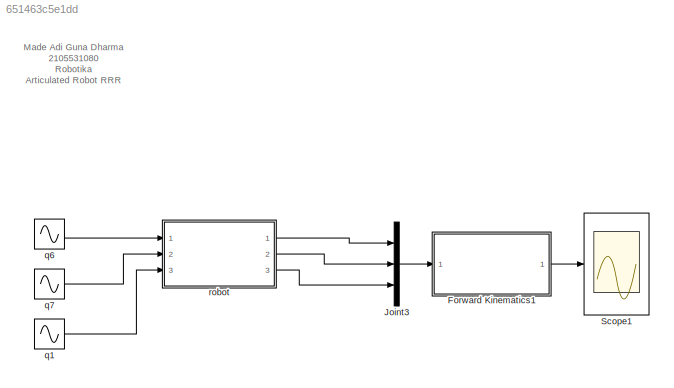
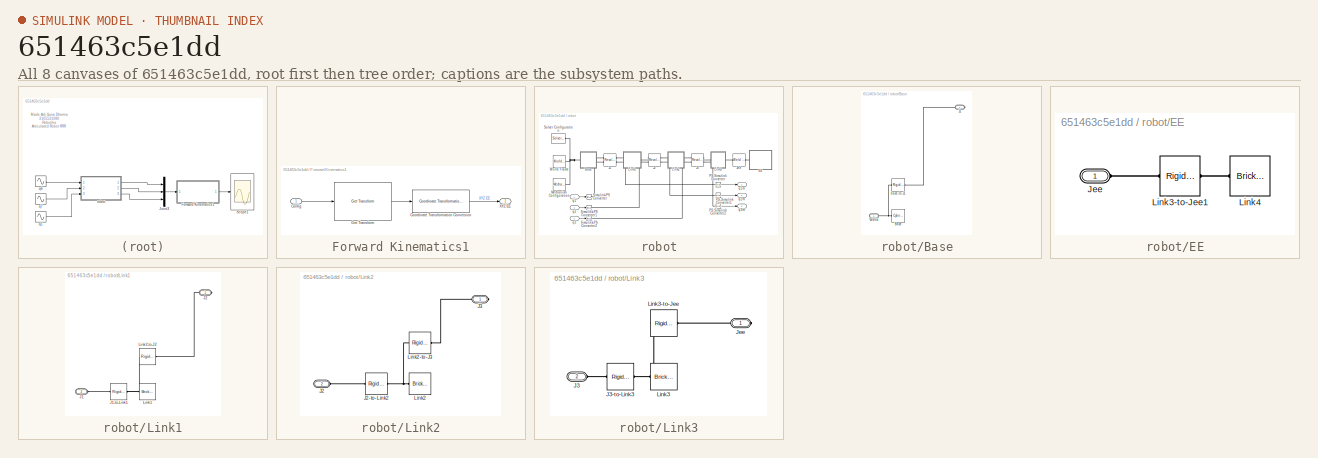
[diagram: thumbnail index - all 8 canvases of the model, root first then tree order]
MODEL slx_651463c5e1dd
KIND model
CONFIG AbsTol = auto
CONFIG EnableMultiTasking = off
CONFIG FixedStep = auto
CONFIG MaxStep = auto
CONFIG MinStep = auto
CONFIG RelTol = 1e-3
CONFIG SampleTimeConstraint = Unconstrained
CONFIG Solver = VariableStepAuto
CONFIG SolverName = VariableStepAuto
CONFIG StartTime = 0.0
CONFIG StopTime = 10.0
BLOCK [SubSystem] Forward Kinematics1
  Ports = [1, 1]
  RequestExecContextInheritance = off
BLOCK [Inport] Forward Kinematics1/Config
BLOCK [Reference] Forward Kinematics1/Coordinate Transformation Conversion  REF=robotcorelib/Coordinate Transformation Conversion
  Ports = [1, 1]
  SourceBlock = robotcorelib/Coordinate Transformation Conversion
  SourceProductBaseCode = NV,RO,RR
  SourceType = robotics.slcore.internal.block.CoordinateTransformationConversion
BLOCK [Reference] Forward Kinematics1/Get Transform  REF=robotmaniplib/Get Transform
  Ports = [1, 1]
  SourceBlock = robotmaniplib/Get Transform
  SourceProductBaseCode = RO
  SourceType = Get Transform
BLOCK [Outport] Forward Kinematics1/XYZ EE
BLOCK [Mux] Joint3
  DisplayOption = bar
  Inputs = 3
  Ports = [3, 1]
BLOCK [Scope] Scope1
  Floating = off
  NumInputPorts = 3
  Ports = [3]
  ScopeSpecificationString = Simulink.scopes.TimeScopeBlockCfg('CurrentConfiguration', extmgr.ConfigurationSet(extmgr.Configuration('Core','General UI',true),extmgr.Configuration('Core','Source UI',true),extmgr.Configuration('Sources','WiredSimulink',true,'DataLoggingVariableName','ScopeData1'),extmgr.Configuration('Visuals','Time Domain',true,'SerializedDisplays',{struct('MinYLimReal','-1.00000','MaxYLimReal','1.00000','YLab...<+2741ch>
BLOCK [Sin] q1
  Amplitude = 0.6
  Frequency = 0.7
  Ports = [0, 1]
  SampleTime = 0
BLOCK [Sin] q6
  Amplitude = 1.3
  Ports = [0, 1]
  SampleTime = 0
BLOCK [Sin] q7
  Amplitude = 0.6
  Frequency = 0.7
  Ports = [0, 1]
  SampleTime = 0
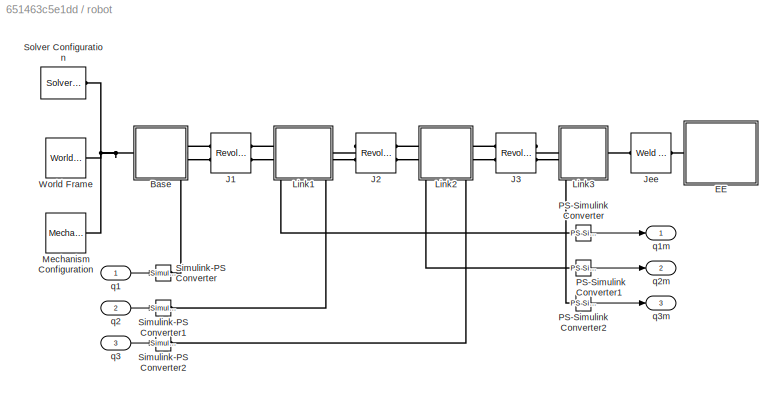
BLOCK [SubSystem] robot
  Ports = [3, 3]
  RequestExecContextInheritance = off
BLOCK [SubSystem] robot/Base
  Ports = [0, 0, 0, 0, 0, 1, 1]
  RequestExecContextInheritance = off
BLOCK [Reference] robot/Base/Base  REF=sm_lib/Body Elements/Cylindrical Solid
  Ports = [0, 0, 0, 0, 0, 0, 1]
  SourceBlock = sm_lib/Body Elements/Cylindrical Solid
  SourceProductBaseCode = MS
  SourceType = Cylindrical Solid
BLOCK [PMIOPort] robot/Base/J1
  Side = Right
BLOCK [PMIOPort] robot/Base/World
  Port = 2
  Side = Left
BLOCK [Reference] robot/Base/base-to-J1  REF=sm_lib/Frames and
Transforms/Rigid
Transform
  Ports = [0, 0, 0, 0, 0, 1, 1]
  SourceBlock = sm_lib/Frames and\nTransforms/Rigid\nTransform
  SourceProductBaseCode = MS
  SourceType = Rigid\nTransform
BLOCK [SubSystem] robot/EE
  Ports = [0, 0, 0, 0, 0, 1]
  RequestExecContextInheritance = off
BLOCK [PMIOPort] robot/EE/Jee
  Side = Left
BLOCK [Reference] robot/EE/Link3-to-Jee1  REF=sm_lib/Frames and
Transforms/Rigid
Transform
  Ports = [0, 0, 0, 0, 0, 1, 1]
  SourceBlock = sm_lib/Frames and\nTransforms/Rigid\nTransform
  SourceProductBaseCode = MS
  SourceType = Rigid\nTransform
BLOCK [Reference] robot/EE/Link4  REF=sm_lib/Body Elements/Brick Solid
  Ports = [0, 0, 0, 0, 0, 0, 1]
  SourceBlock = sm_lib/Body Elements/Brick Solid
  SourceProductBaseCode = MS
  SourceType = Brick Solid
BLOCK [Reference] robot/J1  REF=sm_lib/Joints/Revolute Joint
  Ports = [0, 0, 0, 0, 0, 2, 2]
  SourceBlock = sm_lib/Joints/Revolute Joint
  SourceProductBaseCode = MS
  SourceType = Revolute Joint
BLOCK [Reference] robot/J2  REF=sm_lib/Joints/Revolute Joint
  Ports = [0, 0, 0, 0, 0, 2, 2]
  SourceBlock = sm_lib/Joints/Revolute Joint
  SourceProductBaseCode = MS
  SourceType = Revolute Joint
BLOCK [Reference] robot/J3  REF=sm_lib/Joints/Revolute Joint
  Ports = [0, 0, 0, 0, 0, 2, 2]
  SourceBlock = sm_lib/Joints/Revolute Joint
  SourceProductBaseCode = MS
  SourceType = Revolute Joint
BLOCK [Reference] robot/Jee  REF=sm_lib/Joints/Weld Joint
  Ports = [0, 0, 0, 0, 0, 1, 1]
  SourceBlock = sm_lib/Joints/Weld Joint
  SourceProductBaseCode = MS
  SourceType = Weld Joint
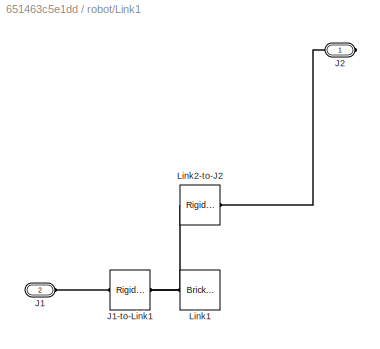
BLOCK [SubSystem] robot/Link1
  Ports = [0, 0, 0, 0, 0, 1, 1]
  RequestExecContextInheritance = off
BLOCK [PMIOPort] robot/Link1/J1
  Port = 2
  Side = Left
BLOCK [Reference] robot/Link1/J1-to-Link1  REF=sm_lib/Frames and
Transforms/Rigid
Transform
  Ports = [0, 0, 0, 0, 0, 1, 1]
  SourceBlock = sm_lib/Frames and\nTransforms/Rigid\nTransform
  SourceProductBaseCode = MS
  SourceType = Rigid\nTransform
BLOCK [PMIOPort] robot/Link1/J2
  Side = Right
BLOCK [Reference] robot/Link1/Link1  REF=sm_lib/Body Elements/Brick Solid
  Ports = [0, 0, 0, 0, 0, 0, 1]
  SourceBlock = sm_lib/Body Elements/Brick Solid
  SourceProductBaseCode = MS
  SourceType = Brick Solid
BLOCK [Reference] robot/Link1/Link2-to-J2  REF=sm_lib/Frames and
Transforms/Rigid
Transform
  Ports = [0, 0, 0, 0, 0, 1, 1]
  SourceBlock = sm_lib/Frames and\nTransforms/Rigid\nTransform
  SourceProductBaseCode = MS
  SourceType = Rigid\nTransform
BLOCK [SubSystem] robot/Link2
  Ports = [0, 0, 0, 0, 0, 1, 1]
  RequestExecContextInheritance = off
BLOCK [PMIOPort] robot/Link2/J2
  Port = 2
  Side = Left
BLOCK [Reference] robot/Link2/J2-to-Link2  REF=sm_lib/Frames and
Transforms/Rigid
Transform
  Ports = [0, 0, 0, 0, 0, 1, 1]
  SourceBlock = sm_lib/Frames and\nTransforms/Rigid\nTransform
  SourceProductBaseCode = MS
  SourceType = Rigid\nTransform
BLOCK [PMIOPort] robot/Link2/J3
  Side = Right
BLOCK [Reference] robot/Link2/Link2  REF=sm_lib/Body Elements/Brick Solid
  Ports = [0, 0, 0, 0, 0, 0, 1]
  SourceBlock = sm_lib/Body Elements/Brick Solid
  SourceProductBaseCode = MS
  SourceType = Brick Solid
BLOCK [Reference] robot/Link2/Link2-to-J3  REF=sm_lib/Frames and
Transforms/Rigid
Transform
  Ports = [0, 0, 0, 0, 0, 1, 1]
  SourceBlock = sm_lib/Frames and\nTransforms/Rigid\nTransform
  SourceProductBaseCode = MS
  SourceType = Rigid\nTransform
BLOCK [SubSystem] robot/Link3
  Ports = [0, 0, 0, 0, 0, 1, 1]
  RequestExecContextInheritance = off
BLOCK [PMIOPort] robot/Link3/J3
  Port = 2
  Side = Left
BLOCK [Reference] robot/Link3/J3-to-Link3  REF=sm_lib/Frames and
Transforms/Rigid
Transform
  Ports = [0, 0, 0, 0, 0, 1, 1]
  SourceBlock = sm_lib/Frames and\nTransforms/Rigid\nTransform
  SourceProductBaseCode = MS
  SourceType = Rigid\nTransform
BLOCK [PMIOPort] robot/Link3/Jee
  Side = Right
BLOCK [Reference] robot/Link3/Link3  REF=sm_lib/Body Elements/Brick Solid
  Ports = [0, 0, 0, 0, 0, 0, 1]
  SourceBlock = sm_lib/Body Elements/Brick Solid
  SourceProductBaseCode = MS
  SourceType = Brick Solid
BLOCK [Reference] robot/Link3/Link3-to-Jee  REF=sm_lib/Frames and
Transforms/Rigid
Transform
  Ports = [0, 0, 0, 0, 0, 1, 1]
  SourceBlock = sm_lib/Frames and\nTransforms/Rigid\nTransform
  SourceProductBaseCode = MS
  SourceType = Rigid\nTransform
BLOCK [Reference] robot/Mechanism Configuration  REF=sm_lib/Utilities/Mechanism
Configuration
  Ports = [0, 0, 0, 0, 0, 0, 1]
  SourceBlock = sm_lib/Utilities/Mechanism\nConfiguration
  SourceProductBaseCode = MS
  SourceType = Mechanism\nConfiguration
BLOCK [Reference] robot/PS-Simulink Converter  REF=nesl_utility/PS-Simulink
Converter
  Ports = [0, 1, 0, 0, 0, 1]
  SourceBlock = nesl_utility/PS-Simulink\nConverter
  SourceProductBaseCode = SS
  SourceType = PS-Simulink\nConverter
BLOCK [Reference] robot/PS-Simulink Converter1  REF=nesl_utility/PS-Simulink
Converter
  Ports = [0, 1, 0, 0, 0, 1]
  SourceBlock = nesl_utility/PS-Simulink\nConverter
  SourceProductBaseCode = SS
  SourceType = PS-Simulink\nConverter
BLOCK [Reference] robot/PS-Simulink Converter2  REF=nesl_utility/PS-Simulink
Converter
  Ports = [0, 1, 0, 0, 0, 1]
  SourceBlock = nesl_utility/PS-Simulink\nConverter
  SourceProductBaseCode = SS
  SourceType = PS-Simulink\nConverter
BLOCK [Reference] robot/Simulink-PS Converter  REF=nesl_utility/Simulink-PS
Converter
  Ports = [1, 0, 0, 0, 0, 0, 1]
  SourceBlock = nesl_utility/Simulink-PS\nConverter
  SourceProductBaseCode = SS
  SourceType = Simulink-PS\nConverter
BLOCK [Reference] robot/Simulink-PS Converter1  REF=nesl_utility/Simulink-PS
Converter
  Ports = [1, 0, 0, 0, 0, 0, 1]
  SourceBlock = nesl_utility/Simulink-PS\nConverter
  SourceProductBaseCode = SS
  SourceType = Simulink-PS\nConverter
BLOCK [Reference] robot/Simulink-PS Converter2  REF=nesl_utility/Simulink-PS
Converter
  Ports = [1, 0, 0, 0, 0, 0, 1]
  SourceBlock = nesl_utility/Simulink-PS\nConverter
  SourceProductBaseCode = SS
  SourceType = Simulink-PS\nConverter
BLOCK [Reference] robot/Solver Configuration  REF=nesl_utility/Solver
Configuration
  Ports = [0, 0, 0, 0, 0, 0, 1]
  SourceBlock = nesl_utility/Solver\nConfiguration
  SourceProductBaseCode = SS
  SourceType = Solver\nConfiguration
BLOCK [Reference] robot/World Frame  REF=sm_lib/Frames and
Transforms/World Frame
  Ports = [0, 0, 0, 0, 0, 0, 1]
  SourceBlock = sm_lib/Frames and\nTransforms/World Frame
  SourceProductBaseCode = MS
  SourceType = World Frame
BLOCK [Inport] robot/q1
BLOCK [Outport] robot/q1m
BLOCK [Inport] robot/q2
  Port = 2
BLOCK [Outport] robot/q2m
  Port = 2
BLOCK [Inport] robot/q3
  Port = 3
BLOCK [Outport] robot/q3m
  Port = 3
ANNOTATION (root): Made Adi Guna Dharma 2105531080 Robotika Articulated Robot RRR
LINE Forward Kinematics1/Config:1 -> Forward Kinematics1/Get Transform:1
LINE Forward Kinematics1/Coordinate Transformation Conversion:1 -> Forward Kinematics1/XYZ EE:1
LINE Forward Kinematics1/Get Transform:1 -> Forward Kinematics1/Coordinate Transformation Conversion:1
LINE Forward Kinematics1:1 -> Scope1:2
LINE Joint3:1 -> Forward Kinematics1:1
LINE q1:1 -> robot:3
LINE q6:1 -> robot:1
LINE q7:1 -> robot:2
LINE robot/PS-Simulink Converter1:1 -> robot/q2m:1
LINE robot/PS-Simulink Converter2:1 -> robot/q3m:1
LINE robot/PS-Simulink Converter:1 -> robot/q1m:1
LINE robot/q1:1 -> robot/Simulink-PS Converter:1
LINE robot/q2:1 -> robot/Simulink-PS Converter1:1
LINE robot/q3:1 -> robot/Simulink-PS Converter2:1
LINE robot:1 -> Joint3:1
LINE robot:2 -> Joint3:2
LINE robot:3 -> Joint3:3
PNET net1: robot/Base/Base:RConn1 -- robot/Base/World:RConn1 -- robot/Base/base-to-J1:LConn1
PLINE robot/Base/J1:RConn1 -- robot/Base/base-to-J1:RConn1
PNET net2: robot/Base:LConn1 -- robot/Mechanism Configuration:RConn1 -- robot/Solver Configuration:RConn1 -- robot/World Frame:RConn1
PLINE robot/Base:RConn1 -- robot/J1:LConn1
PLINE robot/EE/Jee:RConn1 -- robot/EE/Link3-to-Jee1:LConn1
PLINE robot/EE/Link3-to-Jee1:RConn1 -- robot/EE/Link4:RConn1
PLINE robot/EE:LConn1 -- robot/Jee:RConn1
PLINE robot/J1:LConn2 -- robot/Simulink-PS Converter:RConn1
PLINE robot/J1:RConn1 -- robot/Link1:LConn1
PLINE robot/J1:RConn2 -- robot/PS-Simulink Converter:LConn1
PLINE robot/J2:LConn1 -- robot/Link1:RConn1
PLINE robot/J2:LConn2 -- robot/Simulink-PS Converter1:RConn1
PLINE robot/J2:RConn1 -- robot/Link2:LConn1
PLINE robot/J2:RConn2 -- robot/PS-Simulink Converter1:LConn1
PLINE robot/J3:LConn1 -- robot/Link2:RConn1
PLINE robot/J3:LConn2 -- robot/Simulink-PS Converter2:RConn1
PLINE robot/J3:RConn1 -- robot/Link3:LConn1
PLINE robot/J3:RConn2 -- robot/PS-Simulink Converter2:LConn1
PLINE robot/Jee:LConn1 -- robot/Link3:RConn1
PLINE robot/Link1/J1-to-Link1:LConn1 -- robot/Link1/J1:RConn1
PNET net3: robot/Link1/J1-to-Link1:RConn1 -- robot/Link1/Link1:RConn1 -- robot/Link1/Link2-to-J2:LConn1
PLINE robot/Link1/J2:RConn1 -- robot/Link1/Link2-to-J2:RConn1
PLINE robot/Link2/J2-to-Link2:LConn1 -- robot/Link2/J2:RConn1
PNET net4: robot/Link2/J2-to-Link2:RConn1 -- robot/Link2/Link2-to-J3:LConn1 -- robot/Link2/Link2:RConn1
PLINE robot/Link2/J3:RConn1 -- robot/Link2/Link2-to-J3:RConn1
PLINE robot/Link3/J3-to-Link3:LConn1 -- robot/Link3/J3:RConn1
PNET net5: robot/Link3/J3-to-Link3:RConn1 -- robot/Link3/Link3-to-Jee:LConn1 -- robot/Link3/Link3:RConn1
PLINE robot/Link3/Jee:RConn1 -- robot/Link3/Link3-to-Jee:RConn1
note: PNET lines group multi-terminal physical nets as a canonical sorted terminal list (undirected conserving connections); 2-terminal nets keep the pairwise PLINE form
